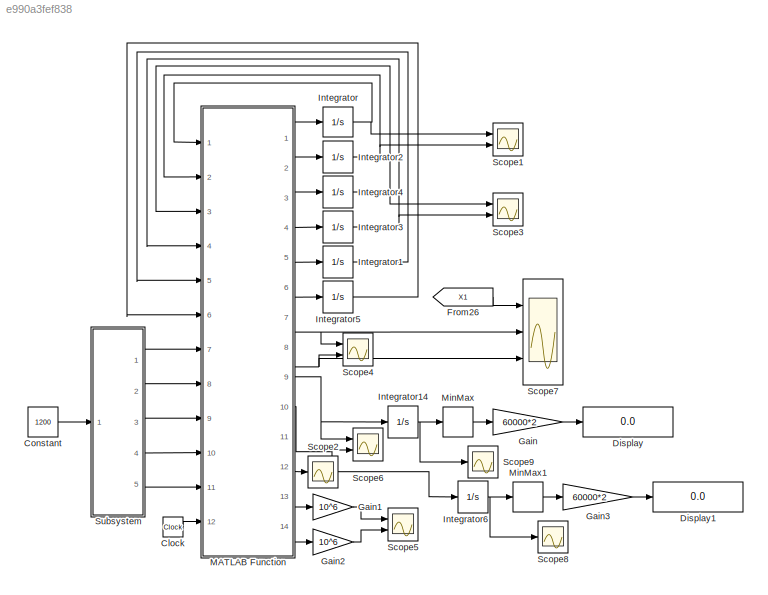
MODEL slx_e990a3fef838
KIND model
CONFIG AbsTol = 1e-7
CONFIG EnableMultiTasking = on
CONFIG FixedStep = auto
CONFIG MaxStep = 0.0001
CONFIG MinStep = auto
CONFIG RelTol = 1e-7
CONFIG SampleTimeConstraint = Unconstrained
CONFIG Solver = ode15s
CONFIG SolverName = ode15s
CONFIG StartTime = 0.0
CONFIG StopTime = 0.5
BLOCK [Clock] Clock
BLOCK [Constant] Constant
  Value = 1200
BLOCK [Display] Display
  Decimation = 1
  Ports = [1]
BLOCK [Display] Display1
  Decimation = 1
  Ports = [1]
BLOCK [From] From26
  GotoTag = X1
  TagVisibility = global
BLOCK [Gain] Gain
  Gain = 60000*2
BLOCK [Gain] Gain1
  Gain = 10^6
BLOCK [Gain] Gain2
  Gain = 10^6
BLOCK [Gain] Gain3
  Gain = 60000*2
BLOCK [Integrator] Integrator
  Ports = [1, 1]
BLOCK [Integrator] Integrator1
  Ports = [1, 1]
BLOCK [Integrator] Integrator14
  Ports = [1, 1]
BLOCK [Integrator] Integrator2
  Ports = [1, 1]
BLOCK [Integrator] Integrator3
  Ports = [1, 1]
BLOCK [Integrator] Integrator4
  Ports = [1, 1]
BLOCK [Integrator] Integrator5
  Ports = [1, 1]
BLOCK [Integrator] Integrator6
  Ports = [1, 1]
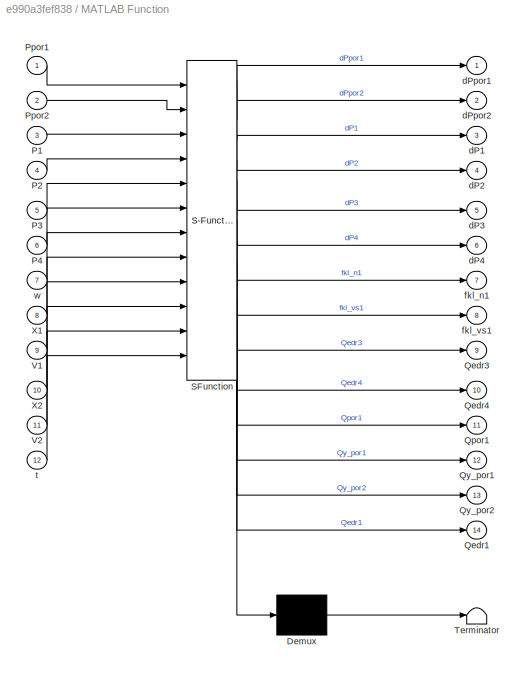
BLOCK [SubSystem] MATLAB Function
  ErrorFcn = Stateflow.Translate.translate
  PermitHierarchicalResolution = ExplicitOnly
  Ports = [12, 14]
  RequestExecContextInheritance = off
  SFBlockType = MATLAB Function
  TreatAsAtomicUnit = on
BLOCK [Demux] MATLAB Function/ Demux 
  Outputs = 1
  Ports = [1, 1]
BLOCK [S-Function] MATLAB Function/ SFunction 
  EnableBusSupport = on
  FunctionName = sf_sfun
  PortCounts = [12 15]
  Ports = [12, 15]
  SFcnIsStateOwnerBlock = off
  SFunctionDeploymentMode = off
  Tag = Stateflow S-Function 1
BLOCK [Terminator] MATLAB Function/ Terminator 
BLOCK [Inport] MATLAB Function/P1
  Port = 3
BLOCK [Inport] MATLAB Function/P2
  Port = 4
BLOCK [Inport] MATLAB Function/P3
  Port = 5
BLOCK [Inport] MATLAB Function/P4
  Port = 6
BLOCK [Inport] MATLAB Function/Ppor1
BLOCK [Inport] MATLAB Function/Ppor2
  Port = 2
BLOCK [Outport] MATLAB Function/Qedr1
  Port = 14
BLOCK [Outport] MATLAB Function/Qedr3
  Port = 9
BLOCK [Outport] MATLAB Function/Qedr4
  Port = 10
BLOCK [Outport] MATLAB Function/Qpor1
  Port = 11
BLOCK [Outport] MATLAB Function/Qy_por1
  Port = 12
BLOCK [Outport] MATLAB Function/Qy_por2
  Port = 13
BLOCK [Inport] MATLAB Function/V1
  Port = 9
BLOCK [Inport] MATLAB Function/V2
  Port = 11
BLOCK [Inport] MATLAB Function/X1
  Port = 8
BLOCK [Inport] MATLAB Function/X2
  Port = 10
BLOCK [Outport] MATLAB Function/dP1
  Port = 3
BLOCK [Outport] MATLAB Function/dP2
  Port = 4
BLOCK [Outport] MATLAB Function/dP3
  Port = 5
BLOCK [Outport] MATLAB Function/dP4
  Port = 6
BLOCK [Outport] MATLAB Function/dPpor1
BLOCK [Outport] MATLAB Function/dPpor2
  Port = 2
BLOCK [Outport] MATLAB Function/fkl_n1
  Port = 7
BLOCK [Outport] MATLAB Function/fkl_vs1
  Port = 8
BLOCK [Inport] MATLAB Function/t
  Port = 12
BLOCK [Inport] MATLAB Function/w
  Port = 7
BLOCK [MinMax] MinMax
  Function = max
  Ports = [1, 1]
BLOCK [MinMax] MinMax1
  Function = max
  Ports = [1, 1]
BLOCK [Scope] Scope1
  Floating = off
  NumInputPorts = 2
  Ports = [2]
  ScopeSpecificationString = Simulink.scopes.TimeScopeBlockCfg('CurrentConfiguration', extmgr.ConfigurationSet(extmgr.Configuration('Core','General UI',true),extmgr.Configuration('Core','Source UI',true),extmgr.Configuration('Sources','WiredSimulink',true,'DataLoggingVariableName','ScopeData2'),extmgr.Configuration('Visuals','Time Domain',true,'SerializedDisplays',{struct('MinYLimReal','-189785.02042','MaxYLimReal','1708065.1...<+2557ch>
BLOCK [Scope] Scope2
  Floating = off
  NumInputPorts = 1
  Ports = [1]
  ScopeSpecificationString = Simulink.scopes.TimeScopeBlockCfg('CurrentConfiguration', extmgr.ConfigurationSet(extmgr.Configuration('Core','General UI',true),extmgr.Configuration('Core','Source UI',true),extmgr.Configuration('Sources','WiredSimulink',true,'DataLoggingVariableName','ScopeData2'),extmgr.Configuration('Visuals','Time Domain',true,'SerializedDisplays',{struct('MinYLimReal','-0.000013','MaxYLimReal','0.000013','YL...<+1879ch>
BLOCK [Scope] Scope3
  Floating = off
  NumInputPorts = 2
  Ports = [2]
  ScopeSpecificationString = Simulink.scopes.TimeScopeBlockCfg('CurrentConfiguration', extmgr.ConfigurationSet(extmgr.Configuration('Core','General UI',true),extmgr.Configuration('Core','Source UI',true),extmgr.Configuration('Sources','WiredSimulink',true,'DataLoggingVariableName','ScopeData3'),extmgr.Configuration('Visuals','Time Domain',true,'SerializedDisplays',{struct('MinYLimReal','-188667.02223','MaxYLimReal','1698003.2...<+2517ch>
BLOCK [Scope] Scope4
  Floating = off
  NumInputPorts = 2
  Ports = [2]
  ScopeSpecificationString = Simulink.scopes.TimeScopeBlockCfg('CurrentConfiguration', extmgr.ConfigurationSet(extmgr.Configuration('Core','General UI',true),extmgr.Configuration('Core','Source UI',true),extmgr.Configuration('Sources','WiredSimulink',true,'DataLoggingVariableName','ScopeData3'),extmgr.Configuration('Visuals','Time Domain',true,'SerializedDisplays',{struct('MinYLimReal','-0.000002','MaxYLimReal','0.000014','YL...<+2500ch>
BLOCK [Scope] Scope5
  Floating = off
  NumInputPorts = 2
  Ports = [2]
  ScopeSpecificationString = Simulink.scopes.TimeScopeBlockCfg('CurrentConfiguration', extmgr.ConfigurationSet(extmgr.Configuration('Core','General UI',true),extmgr.Configuration('Core','Source UI',true),extmgr.Configuration('Sources','WiredSimulink',true,'DataLoggingVariableName','ScopeData4'),extmgr.Configuration('Visuals','Time Domain',true,'SerializedDisplays',{struct('MinYLimReal','-0.53006','MaxYLimReal','2.73411','YLab...<+2517ch>
BLOCK [Scope] Scope6
  Floating = off
  NumInputPorts = 2
  Ports = [2]
  ScopeSpecificationString = Simulink.scopes.TimeScopeBlockCfg('CurrentConfiguration', extmgr.ConfigurationSet(extmgr.Configuration('Core','General UI',true),extmgr.Configuration('Core','Source UI',true),extmgr.Configuration('Sources','WiredSimulink',true,'DataLoggingVariableName','ScopeData9'),extmgr.Configuration('Visuals','Time Domain',true,'SerializedDisplays',{struct('MinYLimReal','-0.000017','MaxYLimReal','0.000046','YL...<+2510ch>
BLOCK [Scope] Scope7
  Floating = off
  NumInputPorts = 3
  Ports = [3]
  ScopeSpecificationString = Simulink.scopes.TimeScopeBlockCfg('CurrentConfiguration', extmgr.ConfigurationSet(extmgr.Configuration('Core','General UI',true,'FigureColor',[0.831372549019608 0.815686274509804 0.784313725490196]),extmgr.Configuration('Core','Source UI',true),extmgr.Configuration('Sources','WiredSimulink',true,'DataLoggingVariableName','ScopeData10'),extmgr.Configuration('Visuals','Time Domain',true,'SerializedD...<+3569ch>
BLOCK [Scope] Scope8
  Floating = off
  NumInputPorts = 1
  Ports = [1]
  ScopeSpecificationString = Simulink.scopes.TimeScopeBlockCfg('CurrentConfiguration', extmgr.ConfigurationSet(extmgr.Configuration('Core','General UI',true),extmgr.Configuration('Core','Source UI',true),extmgr.Configuration('Sources','WiredSimulink',true,'DataLoggingVariableName','ScopeData1'),extmgr.Configuration('Visuals','Time Domain',true,'SerializedDisplays',{struct('MinYLimReal','-0.0000004','MaxYLimReal','0.0000034','...<+1883ch>
BLOCK [Scope] Scope9
  Floating = off
  NumInputPorts = 1
  Ports = [1]
  ScopeSpecificationString = Simulink.scopes.TimeScopeBlockCfg('CurrentConfiguration', extmgr.ConfigurationSet(extmgr.Configuration('Core','General UI',true),extmgr.Configuration('Core','Source UI',true),extmgr.Configuration('Sources','WiredSimulink',true,'DataLoggingVariableName','ScopeData12'),extmgr.Configuration('Visuals','Time Domain',true,'SerializedDisplays',{struct('MinYLimReal','-0.000002','MaxYLimReal','0.000015','Y...<+1874ch>
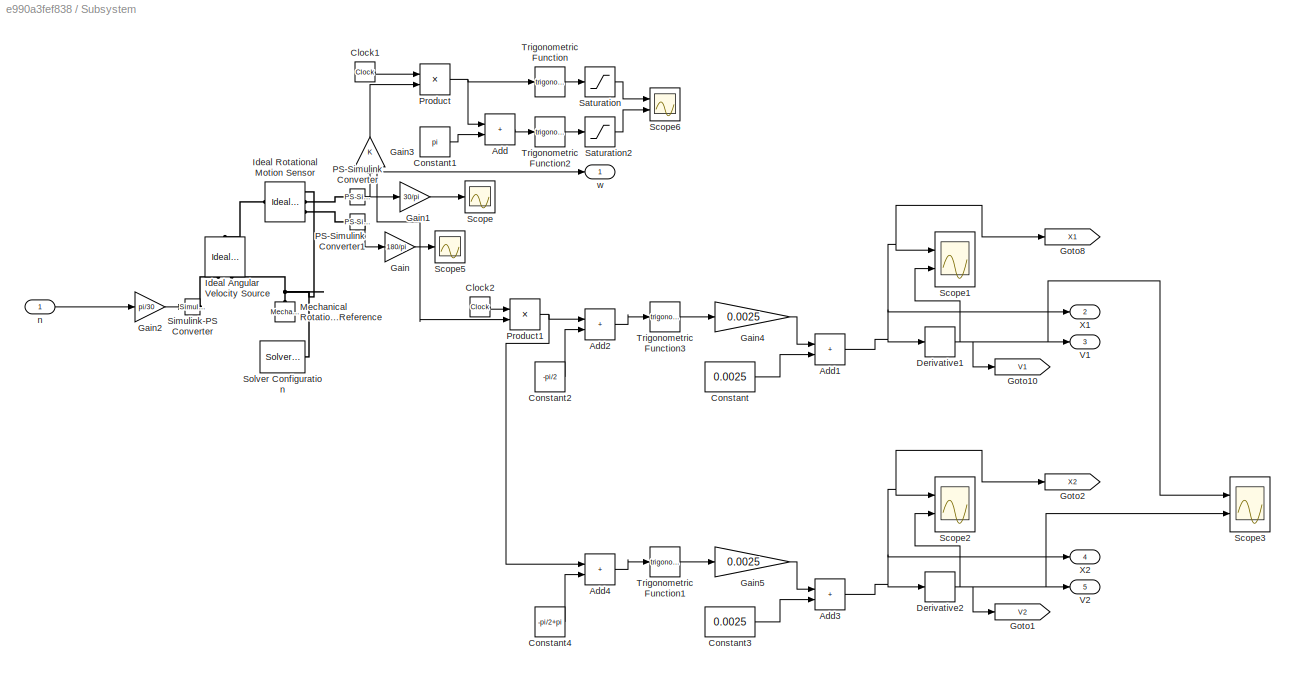
BLOCK [SubSystem] Subsystem
  Ports = [1, 5]
  RequestExecContextInheritance = off
BLOCK [Sum] Subsystem/Add
  IconShape = rectangular
  Ports = [2, 1]
BLOCK [Sum] Subsystem/Add1
  IconShape = rectangular
  Ports = [2, 1]
BLOCK [Sum] Subsystem/Add2
  IconShape = rectangular
  Ports = [2, 1]
BLOCK [Sum] Subsystem/Add3
  IconShape = rectangular
  Ports = [2, 1]
BLOCK [Sum] Subsystem/Add4
  IconShape = rectangular
  Ports = [2, 1]
BLOCK [Clock] Subsystem/Clock1
BLOCK [Clock] Subsystem/Clock2
BLOCK [Constant] Subsystem/Constant
  Value = 0.0025
BLOCK [Constant] Subsystem/Constant1
  Value = pi
BLOCK [Constant] Subsystem/Constant2
  Value = -pi/2
BLOCK [Constant] Subsystem/Constant3
  Value = 0.0025
BLOCK [Constant] Subsystem/Constant4
  Value = -pi/2+pi
BLOCK [Derivative] Subsystem/Derivative1
BLOCK [Derivative] Subsystem/Derivative2
BLOCK [Gain] Subsystem/Gain
  Gain = 180/pi
BLOCK [Gain] Subsystem/Gain1
  Gain = 30/pi
BLOCK [Gain] Subsystem/Gain2
  Gain = pi/30
BLOCK [Gain] Subsystem/Gain3
  NameLocation = right
BLOCK [Gain] Subsystem/Gain4
  Gain = 0.0025
BLOCK [Gain] Subsystem/Gain5
  Gain = 0.0025
BLOCK [Goto] Subsystem/Goto1
  GotoTag = V2
  TagVisibility = global
BLOCK [Goto] Subsystem/Goto10
  GotoTag = V1
  TagVisibility = global
BLOCK [Goto] Subsystem/Goto2
  GotoTag = X2
  TagVisibility = global
BLOCK [Goto] Subsystem/Goto8
  GotoTag = X1
  TagVisibility = global
BLOCK [Reference] Subsystem/Ideal Angular Velocity Source  REF=fl_lib/Mechanical/Mechanical Sources/Ideal Angular
Velocity Source
  NameLocation = right
  Ports = [0, 0, 0, 0, 0, 1, 2]
  SourceBlock = fl_lib/Mechanical/Mechanical Sources/Ideal Angular\nVelocity Source
  SourceProductBaseCode = SS
  SourceType = Ideal Angular\nVelocity Source
BLOCK [Reference] Subsystem/Ideal Rotational Motion Sensor  REF=fl_lib/Mechanical/Mechanical Sensors/Ideal Rotational
Motion Sensor
  Ports = [0, 0, 0, 0, 0, 1, 3]
  SourceBlock = fl_lib/Mechanical/Mechanical Sensors/Ideal Rotational\nMotion Sensor
  SourceProductBaseCode = SS
  SourceType = Ideal Rotational\nMotion Sensor
BLOCK [Reference] Subsystem/Mechanical Rotational Reference  REF=fl_lib/Mechanical/Rotational Elements/Mechanical
Rotational Reference
  NameLocation = right
  Ports = [0, 0, 0, 0, 0, 1]
  SourceBlock = fl_lib/Mechanical/Rotational Elements/Mechanical\nRotational Reference
  SourceProductBaseCode = SS
  SourceType = Mechanical\nRotational Reference
BLOCK [Reference] Subsystem/PS-Simulink Converter  REF=nesl_utility/PS-Simulink
Converter
  Ports = [0, 1, 0, 0, 0, 1]
  SourceBlock = nesl_utility/PS-Simulink\nConverter
  SourceProductBaseCode = SS
  SourceType = PS-Simulink\nConverter
BLOCK [Reference] Subsystem/PS-Simulink Converter1  REF=nesl_utility/PS-Simulink
Converter
  Ports = [0, 1, 0, 0, 0, 1]
  SourceBlock = nesl_utility/PS-Simulink\nConverter
  SourceProductBaseCode = SS
  SourceType = PS-Simulink\nConverter
BLOCK [Product] Subsystem/Product
  Ports = [2, 1]
BLOCK [Product] Subsystem/Product1
  Ports = [2, 1]
BLOCK [Saturate] Subsystem/Saturation
  LowerLimit = 0
  UpperLimit = 10
BLOCK [Saturate] Subsystem/Saturation2
  LowerLimit = 0
  UpperLimit = 10
BLOCK [Scope] Subsystem/Scope
  Floating = off
  NumInputPorts = 1
  Ports = [1]
  ScopeSpecificationString = Simulink.scopes.TimeScopeBlockCfg('CurrentConfiguration', extmgr.ConfigurationSet(extmgr.Configuration('Core','General UI',true),extmgr.Configuration('Core','Source UI',true),extmgr.Configuration('Sources','WiredSimulink',true,'DataLoggingVariableName','ScopeData4'),extmgr.Configuration('Visuals','Time Domain',true,'SerializedDisplays',{struct('MinYLimReal','50.00000','MaxYLimReal','70.00000','YLa...<+1370ch>
BLOCK [Scope] Subsystem/Scope1
  Floating = off
  NumInputPorts = 2
  Ports = [2]
  ScopeSpecificationString = Simulink.scopes.TimeScopeBlockCfg('CurrentConfiguration', extmgr.ConfigurationSet(extmgr.Configuration('Core','General UI',true),extmgr.Configuration('Core','Source UI',true),extmgr.Configuration('Sources','WiredSimulink',true,'DataLoggingVariableName','ScopeData8'),extmgr.Configuration('Visuals','Time Domain',true,'SerializedDisplays',{struct('MinYLimReal','-0.00062','MaxYLimReal','0.00562','YLab...<+2030ch>
BLOCK [Scope] Subsystem/Scope2
  Floating = off
  NumInputPorts = 2
  Ports = [2]
  ScopeSpecificationString = Simulink.scopes.TimeScopeBlockCfg('CurrentConfiguration', extmgr.ConfigurationSet(extmgr.Configuration('Core','General UI',true),extmgr.Configuration('Core','Source UI',true),extmgr.Configuration('Sources','WiredSimulink',true,'DataLoggingVariableName','ScopeData1'),extmgr.Configuration('Visuals','Time Domain',true,'SerializedDisplays',{struct('MinYLimReal','-0.00062','MaxYLimReal','0.00562','YLab...<+2030ch>
BLOCK [Scope] Subsystem/Scope3
  Floating = off
  NumInputPorts = 2
  Ports = [2]
  ScopeSpecificationString = Simulink.scopes.TimeScopeBlockCfg('CurrentConfiguration', extmgr.ConfigurationSet(extmgr.Configuration('Core','General UI',true),extmgr.Configuration('Core','Source UI',true),extmgr.Configuration('Sources','WiredSimulink',true,'DataLoggingVariableName','ScopeData2'),extmgr.Configuration('Visuals','Time Domain',true,'SerializedDisplays',{struct('MinYLimReal','-0.3927','MaxYLimReal','0.3927','YLabel...<+2404ch>
BLOCK [Scope] Subsystem/Scope5
  Floating = off
  NumInputPorts = 1
  Ports = [1]
  ScopeSpecificationString = Simulink.scopes.TimeScopeBlockCfg('CurrentConfiguration', extmgr.ConfigurationSet(extmgr.Configuration('Core','General UI',true),extmgr.Configuration('Core','Source UI',true),extmgr.Configuration('Sources','WiredSimulink',true,'DataLoggingVariableName','ScopeData5'),extmgr.Configuration('Visuals','Time Domain',true,'SerializedDisplays',{struct('MinYLimReal','-45.00000','MaxYLimReal','405.00000','Y...<+1373ch>
BLOCK [Scope] Subsystem/Scope6
  Floating = off
  NumInputPorts = 2
  Ports = [2]
  ScopeSpecificationString = Simulink.scopes.TimeScopeBlockCfg('CurrentConfiguration', extmgr.ConfigurationSet(extmgr.Configuration('Core','General UI',true),extmgr.Configuration('Core','Source UI',true),extmgr.Configuration('Sources','WiredSimulink',true,'DataLoggingVariableName','ScopeData6'),extmgr.Configuration('Visuals','Time Domain',true,'SerializedDisplays',{struct('MinYLimReal','-0.125','MaxYLimReal','1.125','YLabelRe...<+1425ch>
BLOCK [Reference] Subsystem/Simulink-PS Converter  REF=nesl_utility/Simulink-PS
Converter
  Ports = [1, 0, 0, 0, 0, 0, 1]
  SourceBlock = nesl_utility/Simulink-PS\nConverter
  SourceProductBaseCode = SS
  SourceType = Simulink-PS\nConverter
BLOCK [Reference] Subsystem/Solver Configuration  REF=nesl_utility/Solver
Configuration
  Ports = [0, 0, 0, 0, 0, 0, 1]
  SourceBlock = nesl_utility/Solver\nConfiguration
  SourceProductBaseCode = SS
  SourceType = Solver\nConfiguration
BLOCK [Trigonometry] Subsystem/Trigonometric Function
  Ports = [1, 1]
BLOCK [Trigonometry] Subsystem/Trigonometric Function1
  Ports = [1, 1]
BLOCK [Trigonometry] Subsystem/Trigonometric Function2
  Ports = [1, 1]
BLOCK [Trigonometry] Subsystem/Trigonometric Function3
  Ports = [1, 1]
BLOCK [Outport] Subsystem/V1
  Port = 3
BLOCK [Outport] Subsystem/V2
  Port = 5
BLOCK [Outport] Subsystem/X1
  Port = 2
BLOCK [Outport] Subsystem/X2
  Port = 4
BLOCK [Inport] Subsystem/n
BLOCK [Outport] Subsystem/w
LINE Clock:1 -> MATLAB Function:12
LINE Constant:1 -> Subsystem:1
LINE From26:1 -> Scope7:1
LINE Gain1:1 -> Scope5:1
LINE Gain2:1 -> Scope5:2
LINE Gain3:1 -> Display1:1
LINE Gain:1 -> Display:1
NET Integrator14:1 -> MinMax:1, Scope9:1
LINE Integrator1:1 -> MATLAB Function:5
NET Integrator2:1 -> MATLAB Function:2, Scope1:2
NET Integrator3:1 -> MATLAB Function:4, Scope3:2
NET Integrator4:1 -> MATLAB Function:3, Scope3:1
LINE Integrator5:1 -> MATLAB Function:6
NET Integrator6:1 -> MinMax1:1, Scope8:1
NET Integrator:1 -> MATLAB Function:1, Scope1:1
LINE MATLAB Function:1 -> Integrator:1
NET MATLAB Function:10 -> Integrator6:1, Scope6:2
LINE MATLAB Function:11 -> Scope2:1
LINE MATLAB Function:12 -> Gain1:1
LINE MATLAB Function:13 -> Gain2:1
LINE MATLAB Function:2 -> Integrator2:1
LINE MATLAB Function:3 -> Integrator4:1
LINE MATLAB Function:4 -> Integrator3:1
LINE MATLAB Function:5 -> Integrator1:1
LINE MATLAB Function:6 -> Integrator5:1
NET MATLAB Function:7 -> Scope4:1, Scope7:2
NET MATLAB Function:8 -> Scope4:2, Scope7:3
NET MATLAB Function:9 -> Integrator14:1, Scope6:1
LINE MinMax1:1 -> Gain3:1
LINE MinMax:1 -> Gain:1
NET Subsystem/Add1:1 -> Subsystem/Derivative1:1, Subsystem/Goto8:1, Subsystem/Scope1:1, Subsystem/X1:1
LINE Subsystem/Add2:1 -> Subsystem/Trigonometric Function3:1
NET Subsystem/Add3:1 -> Subsystem/Derivative2:1, Subsystem/Goto2:1, Subsystem/Scope2:1, Subsystem/X2:1
LINE Subsystem/Add4:1 -> Subsystem/Trigonometric Function1:1
LINE Subsystem/Add:1 -> Subsystem/Trigonometric Function2:1
LINE Subsystem/Clock1:1 -> Subsystem/Product:1
LINE Subsystem/Clock2:1 -> Subsystem/Product1:1
LINE Subsystem/Constant1:1 -> Subsystem/Add:2
LINE Subsystem/Constant2:1 -> Subsystem/Add2:2
LINE Subsystem/Constant3:1 -> Subsystem/Add3:2
LINE Subsystem/Constant4:1 -> Subsystem/Add4:2
LINE Subsystem/Constant:1 -> Subsystem/Add1:2
NET Subsystem/Derivative1:1 -> Subsystem/Goto10:1, Subsystem/Scope1:2, Subsystem/Scope3:1, Subsystem/V1:1
NET Subsystem/Derivative2:1 -> Subsystem/Goto1:1, Subsystem/Scope2:2, Subsystem/Scope3:2, Subsystem/V2:1
LINE Subsystem/Gain1:1 -> Subsystem/Scope:1
LINE Subsystem/Gain2:1 -> Subsystem/Simulink-PS Converter:1
LINE Subsystem/Gain3:1 -> Subsystem/Product:2
LINE Subsystem/Gain4:1 -> Subsystem/Add1:1
LINE Subsystem/Gain5:1 -> Subsystem/Add3:1
LINE Subsystem/Gain:1 -> Subsystem/Scope5:1
LINE Subsystem/PS-Simulink Converter1:1 -> Subsystem/Gain:1
NET Subsystem/PS-Simulink Converter:1 -> Subsystem/Gain1:1, Subsystem/Gain3:1, Subsystem/Product1:2, Subsystem/w:1
NET Subsystem/Product1:1 -> Subsystem/Add2:1, Subsystem/Add4:1
NET Subsystem/Product:1 -> Subsystem/Add:1, Subsystem/Trigonometric Function:1
LINE Subsystem/Saturation2:1 -> Subsystem/Scope6:2
LINE Subsystem/Saturation:1 -> Subsystem/Scope6:1
LINE Subsystem/Trigonometric Function1:1 -> Subsystem/Gain5:1
LINE Subsystem/Trigonometric Function2:1 -> Subsystem/Saturation2:1
LINE Subsystem/Trigonometric Function3:1 -> Subsystem/Gain4:1
LINE Subsystem/Trigonometric Function:1 -> Subsystem/Saturation:1
LINE Subsystem/n:1 -> Subsystem/Gain2:1
LINE Subsystem:1 -> MATLAB Function:7
LINE Subsystem:2 -> MATLAB Function:8
LINE Subsystem:3 -> MATLAB Function:9
LINE Subsystem:4 -> MATLAB Function:10
LINE Subsystem:5 -> MATLAB Function:11
PLINE Subsystem/Ideal Angular Velocity Source:LConn1 -- Subsystem/Ideal Rotational Motion Sensor:LConn1
PLINE Subsystem/Ideal Angular Velocity Source:RConn1 -- Subsystem/Simulink-PS Converter:RConn1
PNET net1: Subsystem/Ideal Angular Velocity Source:RConn2 -- Subsystem/Ideal Rotational Motion Sensor:RConn1 -- Subsystem/Mechanical Rotational Reference:LConn1 -- Subsystem/Solver Configuration:RConn1
PLINE Subsystem/Ideal Rotational Motion Sensor:RConn2 -- Subsystem/PS-Simulink Converter:LConn1
PLINE Subsystem/Ideal Rotational Motion Sensor:RConn3 -- Subsystem/PS-Simulink Converter1:LConn1
note: NET lines group one-source signal fan-out (src -> all destinations, sorted); 1:1 wires keep LINE; PNET lines group multi-terminal physical nets as a canonical sorted terminal list (undirected conserving connections); 2-terminal nets keep the pairwise PLINE form
CHART MATLAB Function states=1 transitions=1
  STATE_LABEL 'eML_blk_kernel()'
  STATE_LABEL 'SCRIPT:\nfunction [dPpor1,dPpor2,dP1,dP2,dP3,dP4,fkl_n1, fkl_vs1,Qedr3,Qedr4,Qpor1, Qy_por1,  Qy_por2, Qedr1] = fcn(Ppor1,Ppor2, P1,P2,P3, P4,w, X1,V1,X2,V2, t)\n%ход 5 мм\n\nDdr=0.005;\nDkl=0.004;%диаметр отверстия клапана\nDpor=13*10^-3; %диаметр поршня\nSkl=pi*(Dkl^2)/4;% площадь торца клапана\nSpr = (28.19*2.5)*10^-6;% площадь проточки золотника\nE=2060000000;\nWn=4*10^-7;\nW1 = Wn;\nW2 = Wn;\nW3 = Wn;\nW4 ...<+2884ch>'
CHART  states=0 transitions=0
